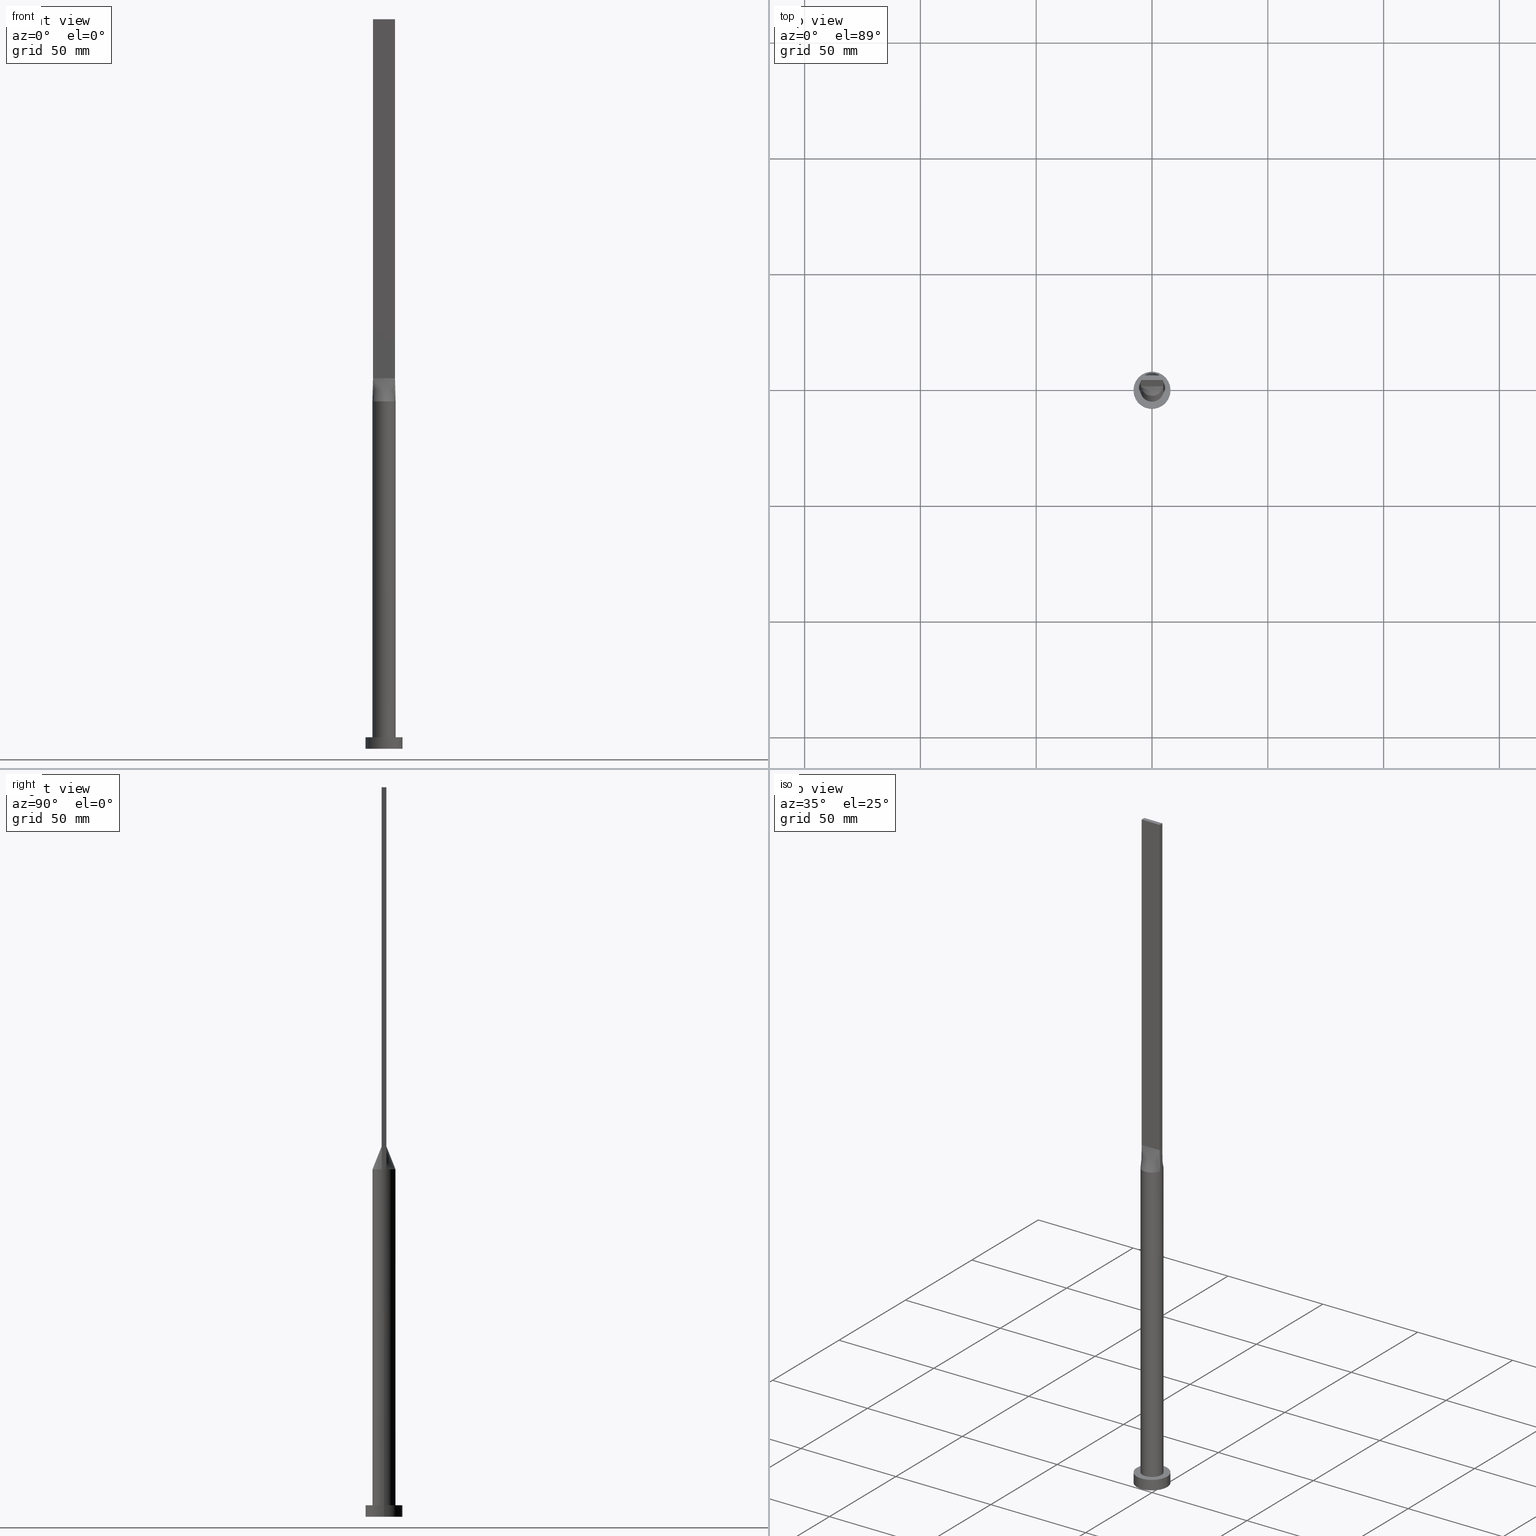
[diagram: canonical four-view strip — front | top / right | iso, engineering-drawing reading convention]
A machine part, canonical four-view strip (front | top / right | iso — engineering-drawing reading convention). The complete STEP part file that produces these views, byte-faithful:
ISO-10303-21;
HEADER;
FILE_DESCRIPTION (( 'STEP AP203' ),
    '1' );
FILE_NAME ('bf9e.STEP',
    '2023-02-13T08:35:05',
    ( '' ),
    ( '' ),
    'SwSTEP 2.0',
    'SolidWorks 2019',
    '' );
FILE_SCHEMA (( 'CONFIG_CONTROL_DESIGN' ));
ENDSEC;

DATA;
#1 = DIRECTION ( 'NONE',  ( 1.000000000000000000, 0.000000000000000000, -0.000000000000000000 ) ) ;
#2 =( NAMED_UNIT ( * ) PLANE_ANGLE_UNIT ( ) SI_UNIT ( $, .RADIAN. ) );
#3 = ORIENTED_EDGE ( 'NONE', *, *, #496, .F. ) ;
#4 = VECTOR ( 'NONE', #522, 1000.000000000000000 ) ;
#5 = VERTEX_POINT ( 'NONE', #431 ) ;
#6 = DIRECTION ( 'NONE',  ( 0.000000000000000000, 0.000000000000000000, 1.000000000000000000 ) ) ;
#7 = CC_DESIGN_PERSON_AND_ORGANIZATION_ASSIGNMENT ( #549, #445, ( #187 ) ) ;
#8 = CARTESIAN_POINT ( 'NONE',  ( -2.546422404201597711, 4.351724242187074765, 150.0000000000000284 ) ) ;
#9 = ADVANCED_BREP_SHAPE_REPRESENTATION ( 'bf9e', ( #507, #237 ), #285 ) ;
#10 = CIRCLE ( 'NONE', #54, 5.000000000000000000 ) ;
#11 = CARTESIAN_POINT ( 'NONE',  ( 4.667610010780610885, 1.859271532507960289, 150.0000000000000284 ) ) ;
#12 = CARTESIAN_POINT ( 'NONE',  ( -4.750000000000000000, 1.000000000000000000, 315.0000000000000000 ) ) ;
#13 = EDGE_CURVE ( 'NONE', #316, #479, #532, .T. ) ;
#14 = DIRECTION ( 'NONE',  ( 1.000000000000000000, 0.000000000000000000, 0.000000000000000000 ) ) ;
#15 = CARTESIAN_POINT ( 'NONE',  ( -1.331739278681919991, 4.830988864699813590, 149.9999999999999432 ) ) ;
#16 = DIRECTION ( 'NONE',  ( 1.000000000000000000, 0.000000000000000000, 0.000000000000000000 ) ) ;
#17 = CARTESIAN_POINT ( 'NONE',  ( -0.3380808736611334853, -5.000000000000000000, 150.0000000000000284 ) ) ;
#18 = AXIS2_PLACEMENT_3D ( 'NONE', #530, #567, #582 ) ;
#19 = CARTESIAN_POINT ( 'NONE',  ( 4.750000000000000000, -0.9999999999999997780, 315.0000000000000000 ) ) ;
#20 = CARTESIAN_POINT ( 'NONE',  ( -0.7916666666666588581, -0.9999999999999991118, 159.9999999999999716 ) ) ;
#21 = CARTESIAN_POINT ( 'NONE',  ( 4.750000000000000000, 1.000000000000000000, 160.0000000000000000 ) ) ;
#22 = EDGE_CURVE ( 'NONE', #79, #142, #74, .T. ) ;
#23 = CARTESIAN_POINT ( 'NONE',  ( 0.3380808736611294329, -5.000000000000000000, 149.9999999999999432 ) ) ;
#24 = CARTESIAN_POINT ( 'NONE',  ( -4.750000000000000000, -0.9999999999999991118, 160.0000000000000000 ) ) ;
#25 = CARTESIAN_POINT ( 'NONE',  ( -1.583333333333325932, -0.9999999999999991118, 159.9999999999999716 ) ) ;
#26 = CARTESIAN_POINT ( 'NONE',  ( 4.214142381859630859, 2.735777372109855943, 150.0000000000000568 ) ) ;
#27 = CARTESIAN_POINT ( 'NONE',  ( 0.000000000000000000, 0.000000000000000000, 0.000000000000000000 ) ) ;
#28 = AXIS2_PLACEMENT_3D ( 'NONE', #200, #63, #14 ) ;
#29 = CARTESIAN_POINT ( 'NONE',  ( -3.166666666666662078, -0.9999999999999991118, 159.9999999999999716 ) ) ;
#30 = CARTESIAN_POINT ( 'NONE',  ( 4.892748924933745691, 1.030052405249209269, 150.0000000000000000 ) ) ;
#31 = APPROVAL ( #312, 'NEUR�EN�' ) ;
#32 = ORIENTED_EDGE ( 'NONE', *, *, #369, .T. ) ;
#33 = AXIS2_PLACEMENT_3D ( 'NONE', #380, #391, #579 ) ;
#34 = LOCAL_TIME ( 9, 35, 5.000000000000000000, #245 ) ;
#35 = FACE_OUTER_BOUND ( 'NONE', #297, .T. ) ;
#36 = CIRCLE ( 'NONE', #279, 8.000000000000000000 ) ;
#37 = DATE_AND_TIME ( #89, #194 ) ;
#38 = APPLICATION_PROTOCOL_DEFINITION ( 'international standard', 'config_control_design', 1994, #246 ) ;
#39 = FACE_OUTER_BOUND ( 'NONE', #556, .T. ) ;
#40 = COORDINATED_UNIVERSAL_TIME_OFFSET ( 1, 0, .AHEAD. ) ;
#41 = CARTESIAN_POINT ( 'NONE',  ( 0.3958333333333319271, 1.000000000000000000, 159.9999999999999716 ) ) ;
#42 = ORIENTED_EDGE ( 'NONE', *, *, #119, .T. ) ;
#43 = DIRECTION ( 'NONE',  ( 0.000000000000000000, 0.000000000000000000, 1.000000000000000000 ) ) ;
#44 = AXIS2_PLACEMENT_3D ( 'NONE', #338, #577, #117 ) ;
#45 = CARTESIAN_POINT ( 'NONE',  ( -4.750000000000000000, 1.000000000000000000, 315.0000000000000000 ) ) ;
#46 = ORIENTED_EDGE ( 'NONE', *, *, #277, .F. ) ;
#47 = DIRECTION ( 'NONE',  ( -1.000000000000000000, 0.000000000000000000, 0.000000000000000000 ) ) ;
#48 = PERSON_AND_ORGANIZATION ( #378, #259 ) ;
#49 = ORIENTED_EDGE ( 'NONE', *, *, #411, .T. ) ;
#50 = CARTESIAN_POINT ( 'NONE',  ( -8.000000000000000000, 0.000000000000000000, 5.000000000000000000 ) ) ;
#51 = AXIS2_PLACEMENT_3D ( 'NONE', #120, #254, #384 ) ;
#52 = ADVANCED_FACE ( 'NONE', ( #470 ), #108, .T. ) ;
#53 = B_SPLINE_SURFACE_WITH_KNOTS ( 'NONE', 3, 1, ( 
 ( #157, #299 ),
 ( #387, #481 ),
 ( #68, #163 ),
 ( #534, #258 ),
 ( #429, #304 ),
 ( #75, #21 ) ),
 .UNSPECIFIED., .F., .F., .F.,
 ( 4, 2, 4 ),
 ( 2, 2 ),
 ( 0.000000000000000000, 0.5000000000000000000, 1.000000000000000000 ),
 ( 0.000000000000000000, 1.000000000000000000 ),
 .UNSPECIFIED. ) ;
#54 = AXIS2_PLACEMENT_3D ( 'NONE', #58, #248, #56 ) ;
#55 = CC_DESIGN_SECURITY_CLASSIFICATION ( #187, ( #402 ) ) ;
#56 = DIRECTION ( 'NONE',  ( 1.000000000000000000, 0.000000000000000000, 0.000000000000000000 ) ) ;
#57 = CARTESIAN_POINT ( 'NONE',  ( -4.750000000000000000, 1.000000000000000000, 315.0000000000000000 ) ) ;
#58 = CARTESIAN_POINT ( 'NONE',  ( 0.000000000000000000, 0.000000000000000000, 150.0000000000000000 ) ) ;
#59 = EDGE_LOOP ( 'NONE', ( #355, #46, #140, #94 ) ) ;
#60 = ADVANCED_FACE ( 'NONE', ( #39 ), #528, .T. ) ;
#61 = VERTEX_POINT ( 'NONE', #347 ) ;
#62 = CARTESIAN_POINT ( 'NONE',  ( 5.000000000000000000, 6.123233995736766282E-16, 150.0000000000000000 ) ) ;
#63 = DIRECTION ( 'NONE',  ( 0.000000000000000000, 0.000000000000000000, 1.000000000000000000 ) ) ;
#64 = CARTESIAN_POINT ( 'NONE',  ( 4.750000000000000000, 1.000000000000000000, 315.0000000000000000 ) ) ;
#65 = PLANE ( 'NONE',  #468 ) ;
#66 = CARTESIAN_POINT ( 'NONE',  ( -0.9895833333333253767, -0.9999999999999991118, 159.9999999999999716 ) ) ;
#67 = EDGE_CURVE ( 'NONE', #505, #310, #311, .T. ) ;
#68 = CARTESIAN_POINT ( 'NONE',  ( 5.000000000000000888, -0.3470731991230004421, 150.0000000000000284 ) ) ;
#69 = CARTESIAN_POINT ( 'NONE',  ( 2.770833333333338366, -0.9999999999999995559, 159.9999999999999716 ) ) ;
#70 = EDGE_LOOP ( 'NONE', ( #249, #240, #282, #83, #266, #459 ) ) ;
#71 = LOCAL_TIME ( 9, 35, 5.000000000000000000, #538 ) ;
#72 = FACE_OUTER_BOUND ( 'NONE', #59, .T. ) ;
#73 = CARTESIAN_POINT ( 'NONE',  ( -3.067114325249250317, -3.991228734590923199, 149.9999999999999432 ) ) ;
#74 = LINE ( 'NONE', #12, #4 ) ;
#75 = CARTESIAN_POINT ( 'NONE',  ( 4.892748924933744803, 1.030052405249211045, 150.0000000000000000 ) ) ;
#76 = EDGE_CURVE ( 'NONE', #128, #516, #344, .T. ) ;
#77 = CARTESIAN_POINT ( 'NONE',  ( -4.808752461626938590, -1.429035605956546329, 150.0000000000000000 ) ) ;
#78 = CARTESIAN_POINT ( 'NONE',  ( 4.750000000000000000, 1.000000000000000000, 160.0000000000000000 ) ) ;
#79 = VERTEX_POINT ( 'NONE', #340 ) ;
#80 = VERTEX_POINT ( 'NONE', #571 ) ;
#81 = PERSON_AND_ORGANIZATION ( #378, #259 ) ;
#82 = CARTESIAN_POINT ( 'NONE',  ( -4.750000000000000000, 1.000000000000000000, 160.0000000000000000 ) ) ;
#83 = ORIENTED_EDGE ( 'NONE', *, *, #112, .F. ) ;
#84 = CARTESIAN_POINT ( 'NONE',  ( -4.821374462466872401, -1.015026202624603524, 155.0000000000000000 ) ) ;
#85 = CARTESIAN_POINT ( 'NONE',  ( 4.808752461626937702, -1.429035605956550103, 149.9999999999999716 ) ) ;
#86 = ORIENTED_EDGE ( 'NONE', *, *, #112, .T. ) ;
#87 = CARTESIAN_POINT ( 'NONE',  ( 4.808752461626938590, 1.429035605956548549, 150.0000000000000000 ) ) ;
#88 = EDGE_CURVE ( 'NONE', #406, #98, #514, .T. ) ;
#89 = CALENDAR_DATE ( 2023, 13, 2 ) ;
#90 = LINE ( 'NONE', #331, #138 ) ;
#91 = VECTOR ( 'NONE', #515, 1000.000000000000000 ) ;
#92 = VECTOR ( 'NONE', #404, 1000.000000000000227 ) ;
#93 = MECHANICAL_CONTEXT ( 'NONE', #570, 'mechanical' ) ;
#94 = ORIENTED_EDGE ( 'NONE', *, *, #374, .T. ) ;
#95 = B_SPLINE_SURFACE_WITH_KNOTS ( 'NONE', 3, 1, ( 
 ( #264, #434 ),
 ( #77, #298 ),
 ( #303, #437 ),
 ( #388, #29 ),
 ( #486, #212 ),
 ( #73, #296 ),
 ( #478, #25 ),
 ( #583, #66 ),
 ( #262, #20 ),
 ( #383, #210 ),
 ( #17, #341 ),
 ( #23, #345 ),
 ( #121, #475 ),
 ( #255, #422 ),
 ( #115, #260 ),
 ( #201, #203 ),
 ( #158, #300 ),
 ( #482, #69 ),
 ( #430, #206 ),
 ( #385, #230 ),
 ( #85, #448 ),
 ( #321, #220 ) ),
 .UNSPECIFIED., .F., .F., .F.,
 ( 4, 2, 2, 2, 2, 2, 2, 2, 2, 2, 4 ),
 ( 2, 2 ),
 ( 0.000000000000000000, 0.1250000000000000278, 0.2500000000000000555, 0.3750000000000001110, 0.4375000000000000555, 0.5000000000000000000, 0.5625000000000000000, 0.6250000000000000000, 0.7500000000000000000, 0.8750000000000001110, 1.000000000000000000 ),
 ( 0.000000000000000000, 1.000000000000000000 ),
 .UNSPECIFIED. ) ;
#96 = EDGE_CURVE ( 'NONE', #142, #80, #420, .T. ) ;
#97 = ORIENTED_EDGE ( 'NONE', *, *, #96, .T. ) ;
#98 = VERTEX_POINT ( 'NONE', #337 ) ;
#99 = DIRECTION ( 'NONE',  ( -1.000000000000000000, 0.000000000000000000, 0.000000000000000000 ) ) ;
#100 = DIRECTION ( 'NONE',  ( 1.000000000000000000, 0.000000000000000000, 0.000000000000000000 ) ) ;
#101 = ORIENTED_EDGE ( 'NONE', *, *, #13, .T. ) ;
#102 = CARTESIAN_POINT ( 'NONE',  ( -4.808752461626937702, 1.429035605956548771, 150.0000000000000000 ) ) ;
#103 = ORIENTED_EDGE ( 'NONE', *, *, #76, .F. ) ;
#104 = DIRECTION ( 'NONE',  ( -0.000000000000000000, -0.000000000000000000, -1.000000000000000000 ) ) ;
#105 = DATE_AND_TIME ( #370, #34 ) ;
#106 = CARTESIAN_POINT ( 'NONE',  ( 3.067114325249248097, 3.991228734590925864, 150.0000000000000568 ) ) ;
#107 = DIRECTION ( 'NONE',  ( 0.000000000000000000, 0.000000000000000000, 1.000000000000000000 ) ) ;
#108 = B_SPLINE_SURFACE_WITH_KNOTS ( 'NONE', 3, 1, ( 
 ( #30, #78 ),
 ( #263, #446 ),
 ( #274, #399 ),
 ( #26, #179 ),
 ( #221, #265 ),
 ( #442, #584 ),
 ( #168, #211 ),
 ( #595, #315 ),
 ( #392, #500 ),
 ( #170, #41 ),
 ( #213, #122 ),
 ( #132, #226 ),
 ( #539, #600 ),
 ( #309, #176 ),
 ( #361, #357 ),
 ( #395, #319 ),
 ( #503, #588 ),
 ( #165, #349 ),
 ( #438, #550 ),
 ( #492, #440 ),
 ( #544, #435 ),
 ( #127, #82 ) ),
 .UNSPECIFIED., .F., .F., .F.,
 ( 4, 2, 2, 2, 2, 2, 2, 2, 2, 2, 4 ),
 ( 2, 2 ),
 ( 0.000000000000000000, 0.1250000000000000278, 0.2500000000000000000, 0.3749999999999999445, 0.4375000000000000000, 0.5000000000000000000, 0.5625000000000000000, 0.6250000000000000000, 0.7500000000000000000, 0.8750000000000001110, 1.000000000000000000 ),
 ( 0.000000000000000000, 1.000000000000000000 ),
 .UNSPECIFIED. ) ;
#109 = FACE_OUTER_BOUND ( 'NONE', #342, .T. ) ;
#110 = DIRECTION ( 'NONE',  ( -1.000000000000000000, 0.000000000000000000, 0.000000000000000000 ) ) ;
#111 = LINE ( 'NONE', #488, #336 ) ;
#112 = EDGE_CURVE ( 'NONE', #180, #545, #504, .T. ) ;
#113 = ORIENTED_EDGE ( 'NONE', *, *, #443, .F. ) ;
#114 = DIRECTION ( 'NONE',  ( 6.847592668329501559E-17, 1.000000000000000000, -0.000000000000000000 ) ) ;
#115 = CARTESIAN_POINT ( 'NONE',  ( 1.649264041307592965, -4.731318088779740805, 150.0000000000000284 ) ) ;
#116 = DIRECTION ( 'NONE',  ( 1.000000000000000000, -6.847592668329501559E-17, 0.000000000000000000 ) ) ;
#117 = DIRECTION ( 'NONE',  ( 1.000000000000000000, 0.000000000000000000, -0.000000000000000000 ) ) ;
#118 = CC_DESIGN_APPROVAL ( #307, ( #402 ) ) ;
#119 = EDGE_CURVE ( 'NONE', #501, #332, #302, .T. ) ;
#120 = CARTESIAN_POINT ( 'NONE',  ( 0.000000000000000000, 0.000000000000000000, 150.0000000000000000 ) ) ;
#121 = CARTESIAN_POINT ( 'NONE',  ( 0.6760916456145764641, -4.965368365385190330, 150.0000000000000000 ) ) ;
#122 = CARTESIAN_POINT ( 'NONE',  ( 0.1979166666666652141, 1.000000000000000000, 159.9999999999999716 ) ) ;
#123 = DIRECTION ( 'NONE',  ( -0.000000000000000000, -0.000000000000000000, -1.000000000000000000 ) ) ;
#124 = CALENDAR_DATE ( 2023, 13, 2 ) ;
#125 = DIRECTION ( 'NONE',  ( 1.000000000000000000, 0.000000000000000000, -0.000000000000000000 ) ) ;
#126 = AXIS2_PLACEMENT_3D ( 'NONE', #526, #202, #110 ) ;
#127 = CARTESIAN_POINT ( 'NONE',  ( -4.892748924933745691, 1.030052405249209269, 150.0000000000000000 ) ) ;
#128 = VERTEX_POINT ( 'NONE', #379 ) ;
#129 = ADVANCED_FACE ( 'NONE', ( #72 ), #65, .F. ) ;
#130 = CARTESIAN_POINT ( 'NONE',  ( -4.963482788771056420, 0.6940665520219767570, 150.0000000000000284 ) ) ;
#131 = DATE_AND_TIME ( #599, #533 ) ;
#132 = CARTESIAN_POINT ( 'NONE',  ( -0.3380808736611314869, 4.999999999999999112, 150.0000000000000568 ) ) ;
#133 = VERTEX_POINT ( 'NONE', #432 ) ;
#134 = CARTESIAN_POINT ( 'NONE',  ( -1.649264041307594963, 4.731318088779739917, 149.9999999999999716 ) ) ;
#135 = DIRECTION ( 'NONE',  ( -0.000000000000000000, 0.000000000000000000, -1.000000000000000000 ) ) ;
#136 = DIRECTION ( 'NONE',  ( 1.000000000000000000, 0.000000000000000000, 0.000000000000000000 ) ) ;
#137 = ORIENTED_EDGE ( 'NONE', *, *, #542, .T. ) ;
#138 = VECTOR ( 'NONE', #412, 1000.000000000000000 ) ;
#139 = PRODUCT_DEFINITION ( 'NEZN�M�', '', #402, #581 ) ;
#140 = ORIENTED_EDGE ( 'NONE', *, *, #96, .F. ) ;
#141 = APPROVAL_ROLE ( '' ) ;
#142 = VERTEX_POINT ( 'NONE', #209 ) ;
#143 = CARTESIAN_POINT ( 'NONE',  ( 0.000000000000000000, 0.000000000000000000, 150.0000000000000000 ) ) ;
#144 = CARTESIAN_POINT ( 'NONE',  ( 4.214142381859630859, 2.735777372109855943, 150.0000000000000568 ) ) ;
#145 = ORIENTED_EDGE ( 'NONE', *, *, #443, .T. ) ;
#146 = APPROVAL_PERSON_ORGANIZATION ( #318, #480, #141 ) ;
#147 = DIRECTION ( 'NONE',  ( -0.000000000000000000, -0.000000000000000000, -1.000000000000000000 ) ) ;
#148 = DIRECTION ( 'NONE',  ( 0.000000000000000000, -1.000000000000000000, 0.000000000000000000 ) ) ;
#149 = FACE_OUTER_BOUND ( 'NONE', #217, .T. ) ;
#150 = PLANE ( 'NONE',  #346 ) ;
#151 = ORIENTED_EDGE ( 'NONE', *, *, #451, .F. ) ;
#152 = CARTESIAN_POINT ( 'NONE',  ( -4.750000000000000000, -0.9999999999999991118, 315.0000000000000000 ) ) ;
#153 = EDGE_CURVE ( 'NONE', #80, #396, #256, .T. ) ;
#154 = AXIS2_PLACEMENT_3D ( 'NONE', #45, #125, #135 ) ;
#155 = DIRECTION ( 'NONE',  ( 1.000000000000000000, 0.000000000000000000, 0.000000000000000000 ) ) ;
#156 = ORIENTED_EDGE ( 'NONE', *, *, #496, .T. ) ;
#157 = CARTESIAN_POINT ( 'NONE',  ( 4.892748924933744803, -1.030052405249212155, 150.0000000000000000 ) ) ;
#158 = CARTESIAN_POINT ( 'NONE',  ( 3.067114325249245876, -3.991228734590925864, 150.0000000000000000 ) ) ;
#159 = DIRECTION ( 'NONE',  ( -0.000000000000000000, -0.000000000000000000, -1.000000000000000000 ) ) ;
#160 = DIRECTION ( 'NONE',  ( 0.000000000000000000, 0.000000000000000000, 1.000000000000000000 ) ) ;
#161 = EDGE_CURVE ( 'NONE', #501, #169, #555, .T. ) ;
#162 = VECTOR ( 'NONE', #421, 1000.000000000000000 ) ;
#163 = CARTESIAN_POINT ( 'NONE',  ( 4.750000000000000000, -0.3333333333333315940, 159.9999999999999716 ) ) ;
#164 = FACE_OUTER_BOUND ( 'NONE', #186, .T. ) ;
#165 = CARTESIAN_POINT ( 'NONE',  ( -3.900093280396789819, 3.182195704254724422, 150.0000000000000000 ) ) ;
#166 = ORIENTED_EDGE ( 'NONE', *, *, #153, .T. ) ;
#167 = CARTESIAN_POINT ( 'NONE',  ( 4.750000000000000000, -0.9999999999999997780, 315.0000000000000000 ) ) ;
#168 = CARTESIAN_POINT ( 'NONE',  ( 2.546422404201596823, 4.351724242187075653, 150.0000000000000000 ) ) ;
#169 = VERTEX_POINT ( 'NONE', #381 ) ;
#170 = CARTESIAN_POINT ( 'NONE',  ( 0.6760916456145784625, 4.965368365385191218, 150.0000000000000000 ) ) ;
#171 = EDGE_LOOP ( 'NONE', ( #497, #575 ) ) ;
#172 = CARTESIAN_POINT ( 'NONE',  ( 0.000000000000000000, 0.000000000000000000, 5.000000000000000000 ) ) ;
#173 = VECTOR ( 'NONE', #425, 1000.000000000000000 ) ;
#174 = ADVANCED_FACE ( 'NONE', ( #576 ), #53, .T. ) ;
#175 = PERSON_AND_ORGANIZATION_ROLE ( 'design_supplier' ) ;
#176 = CARTESIAN_POINT ( 'NONE',  ( -0.7916666666666679619, 1.000000000000000000, 159.9999999999999716 ) ) ;
#177 = LINE ( 'NONE', #167, #494 ) ;
#178 = DATE_TIME_ROLE ( 'classification_date' ) ;
#179 = CARTESIAN_POINT ( 'NONE',  ( 3.166666666666665630, 1.000000000000000000, 159.9999999999999716 ) ) ;
#180 = VERTEX_POINT ( 'NONE', #376 ) ;
#181 = CARTESIAN_POINT ( 'NONE',  ( -4.750000000000000000, -0.9999999999999991118, 315.0000000000000000 ) ) ;
#182 = DIRECTION ( 'NONE',  ( 0.000000000000000000, 0.000000000000000000, 1.000000000000000000 ) ) ;
#183 = ORIENTED_EDGE ( 'NONE', *, *, #463, .F. ) ;
#184 = ADVANCED_FACE ( 'NONE', ( #149 ), #205, .T. ) ;
#185 = CIRCLE ( 'NONE', #293, 5.000000000000000000 ) ;
#186 = EDGE_LOOP ( 'NONE', ( #156, #489, #97, #166 ) ) ;
#187 = SECURITY_CLASSIFICATION ( '', '', #273 ) ;
#188 = ORIENTED_EDGE ( 'NONE', *, *, #22, .F. ) ;
#189 = FACE_OUTER_BOUND ( 'NONE', #70, .T. ) ;
#190 = CARTESIAN_POINT ( 'NONE',  ( 4.750000000000000000, 1.000000000000000000, 160.0000000000000000 ) ) ;
#191 = ADVANCED_FACE ( 'NONE', ( #523 ), #562, .T. ) ;
#192 = VECTOR ( 'NONE', #386, 1000.000000000000227 ) ;
#193 = CARTESIAN_POINT ( 'NONE',  ( -3.900093280396789819, 3.182195704254724422, 150.0000000000000000 ) ) ;
#194 = LOCAL_TIME ( 9, 35, 5.000000000000000000, #398 ) ;
#195 = AXIS2_PLACEMENT_3D ( 'NONE', #578, #159, #334 ) ;
#196 = CARTESIAN_POINT ( 'NONE',  ( -3.067114325249248097, 3.991228734590924976, 150.0000000000000284 ) ) ;
#197 = CARTESIAN_POINT ( 'NONE',  ( 0.000000000000000000, 0.000000000000000000, 150.0000000000000000 ) ) ;
#198 = DIRECTION ( 'NONE',  ( -0.000000000000000000, 1.000000000000000000, -0.000000000000000000 ) ) ;
#199 = EDGE_CURVE ( 'NONE', #98, #406, #185, .T. ) ;
#200 = CARTESIAN_POINT ( 'NONE',  ( 0.000000000000000000, 0.000000000000000000, 5.000000000000000000 ) ) ;
#201 = CARTESIAN_POINT ( 'NONE',  ( 2.546422404201595491, -4.351724242187078318, 150.0000000000000000 ) ) ;
#202 = DIRECTION ( 'NONE',  ( -0.000000000000000000, -0.000000000000000000, -1.000000000000000000 ) ) ;
#203 = CARTESIAN_POINT ( 'NONE',  ( 1.583333333333339255, -0.9999999999999995559, 159.9999999999999716 ) ) ;
#204 = ORIENTED_EDGE ( 'NONE', *, *, #553, .T. ) ;
#205 = CYLINDRICAL_SURFACE ( 'NONE', #195, 5.000000000000000000 ) ;
#206 = CARTESIAN_POINT ( 'NONE',  ( 3.166666666666671404, -0.9999999999999995559, 159.9999999999999716 ) ) ;
#207 = CARTESIAN_POINT ( 'NONE',  ( 4.821374462466871513, 1.015026202624605522, 155.0000000000000000 ) ) ;
#208 = UNCERTAINTY_MEASURE_WITH_UNIT (LENGTH_MEASURE( 1.000000000000000082E-05 ), #405, 'distance_accuracy_value', 'NONE');
#209 = CARTESIAN_POINT ( 'NONE',  ( -4.750000000000000000, -0.9999999999999991118, 315.0000000000000000 ) ) ;
#210 = CARTESIAN_POINT ( 'NONE',  ( -0.3958333333333258208, -0.9999999999999991118, 159.9999999999999716 ) ) ;
#211 = CARTESIAN_POINT ( 'NONE',  ( 1.583333333333332593, 1.000000000000000000, 159.9999999999999716 ) ) ;
#212 = CARTESIAN_POINT ( 'NONE',  ( -2.770833333333328152, -0.9999999999999991118, 159.9999999999999716 ) ) ;
#213 = CARTESIAN_POINT ( 'NONE',  ( 0.3380808736611315979, 4.999999999999999112, 150.0000000000000000 ) ) ;
#214 = ORIENTED_EDGE ( 'NONE', *, *, #199, .F. ) ;
#215 = AXIS2_PLACEMENT_3D ( 'NONE', #143, #327, #99 ) ;
#216 = PERSON_AND_ORGANIZATION_ROLE ( 'creator' ) ;
#217 = EDGE_LOOP ( 'NONE', ( #183, #561, #452, #569, #536, #362 ) ) ;
#218 = ADVANCED_FACE ( 'NONE', ( #591, #35 ), #554, .T. ) ;
#219 = DIRECTION ( 'NONE',  ( 1.000000000000000000, 0.000000000000000000, 0.000000000000000000 ) ) ;
#220 = CARTESIAN_POINT ( 'NONE',  ( 4.750000000000000000, -0.9999999999999997780, 160.0000000000000000 ) ) ;
#221 = CARTESIAN_POINT ( 'NONE',  ( 3.900093280396791151, 3.182195704254724422, 150.0000000000000284 ) ) ;
#222 = ORIENTED_EDGE ( 'NONE', *, *, #343, .T. ) ;
#223 = CLOSED_SHELL ( 'NONE', ( #184, #508, #60, #218, #484, #333, #580, #174, #191, #52, #517, #242, #129, #301, #559 ) ) ;
#224 = CARTESIAN_POINT ( 'NONE',  ( -5.000000000000002665, 0.3470731991229993874, 150.0000000000000284 ) ) ;
#225 = PERSON_AND_ORGANIZATION_ROLE ( 'creator' ) ;
#226 = CARTESIAN_POINT ( 'NONE',  ( -0.1979166666666680452, 1.000000000000000000, 159.9999999999999716 ) ) ;
#227 = ORIENTED_EDGE ( 'NONE', *, *, #119, .F. ) ;
#228 = CARTESIAN_POINT ( 'NONE',  ( 4.892748924933744803, 1.030052405249211045, 150.0000000000000000 ) ) ;
#229 = LINE ( 'NONE', #444, #92 ) ;
#230 = CARTESIAN_POINT ( 'NONE',  ( 3.958333333333336146, -0.9999999999999995559, 159.9999999999999716 ) ) ;
#231 = EDGE_CURVE ( 'NONE', #61, #5, #436, .T. ) ;
#232 = ORIENTED_EDGE ( 'NONE', *, *, #451, .T. ) ;
#233 = APPROVAL_ROLE ( '' ) ;
#234 = ORIENTED_EDGE ( 'NONE', *, *, #411, .F. ) ;
#235 = CARTESIAN_POINT ( 'NONE',  ( 8.000000000000000000, 9.797174393178825657E-16, 0.000000000000000000 ) ) ;
#236 = AXIS2_PLACEMENT_3D ( 'NONE', #416, #43, #252 ) ;
#237 = AXIS2_PLACEMENT_3D ( 'NONE', #365, #491, #136 ) ;
#238 = APPROVAL_DATE_TIME ( #105, #480 ) ;
#239 = CARTESIAN_POINT ( 'NONE',  ( 0.000000000000000000, 0.000000000000000000, 0.000000000000000000 ) ) ;
#240 = ORIENTED_EDGE ( 'NONE', *, *, #67, .F. ) ;
#241 = DIRECTION ( 'NONE',  ( -0.000000000000000000, -0.000000000000000000, -1.000000000000000000 ) ) ;
#242 = ADVANCED_FACE ( 'NONE', ( #593 ), #598, .F. ) ;
#243 = CARTESIAN_POINT ( 'NONE',  ( 4.892747712986307285, -1.030052143680505683, 150.0000000000000000 ) ) ;
#244 = EDGE_LOOP ( 'NONE', ( #339, #540, #281, #454 ) ) ;
#245 = COORDINATED_UNIVERSAL_TIME_OFFSET ( 1, 0, .AHEAD. ) ;
#246 = APPLICATION_CONTEXT ( 'configuration controlled 3d designs of mechanical parts and assemblies' ) ;
#247 = AXIS2_PLACEMENT_3D ( 'NONE', #197, #107, #16 ) ;
#248 = DIRECTION ( 'NONE',  ( 0.000000000000000000, 0.000000000000000000, 1.000000000000000000 ) ) ;
#249 = ORIENTED_EDGE ( 'NONE', *, *, #352, .F. ) ;
#250 = DIRECTION ( 'NONE',  ( -0.000000000000000000, -0.000000000000000000, -1.000000000000000000 ) ) ;
#251 = VECTOR ( 'NONE', #272, 1000.000000000000227 ) ;
#252 = DIRECTION ( 'NONE',  ( 1.000000000000000000, 0.000000000000000000, 0.000000000000000000 ) ) ;
#253 = EDGE_CURVE ( 'NONE', #332, #133, #350, .T. ) ;
#254 = DIRECTION ( 'NONE',  ( 0.000000000000000000, 0.000000000000000000, 1.000000000000000000 ) ) ;
#255 = CARTESIAN_POINT ( 'NONE',  ( 1.331739278681917771, -4.830988864699812702, 149.9999999999999716 ) ) ;
#256 = LINE ( 'NONE', #19, #173 ) ;
#257 = DIRECTION ( 'NONE',  ( 0.000000000000000000, -1.000000000000000000, 0.000000000000000000 ) ) ;
#258 = CARTESIAN_POINT ( 'NONE',  ( 4.750000000000000000, 0.3333333333333350357, 159.9999999999999716 ) ) ;
#259 = ORGANIZATION ( 'NEUR�EN�', 'NEUR�EN�', '' ) ;
#260 = CARTESIAN_POINT ( 'NONE',  ( 0.9895833333333399207, -0.9999999999999995559, 159.9999999999999716 ) ) ;
#261 = DIRECTION ( 'NONE',  ( -1.000000000000000000, 6.847592668329501559E-17, 0.000000000000000000 ) ) ;
#262 = CARTESIAN_POINT ( 'NONE',  ( -1.331739278681922656, -4.830988864699811813, 150.0000000000000284 ) ) ;
#263 = CARTESIAN_POINT ( 'NONE',  ( 4.808752461626938590, 1.429035605956548549, 150.0000000000000000 ) ) ;
#264 = CARTESIAN_POINT ( 'NONE',  ( -4.892748924933745691, -1.030052405249207936, 150.0000000000000000 ) ) ;
#265 = CARTESIAN_POINT ( 'NONE',  ( 2.770833333333332593, 1.000000000000000000, 159.9999999999999716 ) ) ;
#266 = ORIENTED_EDGE ( 'NONE', *, *, #566, .T. ) ;
#267 = CARTESIAN_POINT ( 'NONE',  ( -5.000000000000000000, -0.3470731991229979996, 150.0000000000000568 ) ) ;
#268 = CC_DESIGN_PERSON_AND_ORGANIZATION_ASSIGNMENT ( #270, #175, ( #402 ) ) ;
#269 = ORIENTED_EDGE ( 'NONE', *, *, #400, .T. ) ;
#270 = PERSON_AND_ORGANIZATION ( #378, #259 ) ;
#271 = EDGE_LOOP ( 'NONE', ( #232, #596, #329, #366 ) ) ;
#272 = DIRECTION ( 'NONE',  ( -0.01427337385845011720, -0.003004920812305203470, -0.9998936149659165551 ) ) ;
#273 = SECURITY_CLASSIFICATION_LEVEL ( 'unclassified' ) ;
#274 = CARTESIAN_POINT ( 'NONE',  ( 4.667610010780610885, 1.859271532507960289, 150.0000000000000284 ) ) ;
#275 = CARTESIAN_POINT ( 'NONE',  ( 4.750000000000000000, 1.000000000000000000, 315.0000000000000000 ) ) ;
#276 = CARTESIAN_POINT ( 'NONE',  ( -4.750000000000000000, 0.6666666666666667407, 159.9999999999999716 ) ) ;
#277 = EDGE_CURVE ( 'NONE', #80, #516, #177, .T. ) ;
#278 =( NAMED_UNIT ( * ) SI_UNIT ( $, .STERADIAN. ) SOLID_ANGLE_UNIT ( ) );
#279 = AXIS2_PLACEMENT_3D ( 'NONE', #403, #458, #100 ) ;
#280 = FACE_OUTER_BOUND ( 'NONE', #271, .T. ) ;
#281 = ORIENTED_EDGE ( 'NONE', *, *, #389, .F. ) ;
#282 = ORIENTED_EDGE ( 'NONE', *, *, #542, .F. ) ;
#283 = CARTESIAN_POINT ( 'NONE',  ( -4.214142381859630859, 2.735777372109856387, 150.0000000000000000 ) ) ;
#284 = EDGE_CURVE ( 'NONE', #128, #545, #490, .T. ) ;
#285 =( GEOMETRIC_REPRESENTATION_CONTEXT ( 3 ) GLOBAL_UNCERTAINTY_ASSIGNED_CONTEXT ( ( #208 ) ) GLOBAL_UNIT_ASSIGNED_CONTEXT ( ( #405, #2, #278 ) ) REPRESENTATION_CONTEXT ( 'NONE', 'WORKASPACE' ) );
#286 = LINE ( 'NONE', #57, #557 ) ;
#287 = CARTESIAN_POINT ( 'NONE',  ( 8.000000000000000000, 9.797174393178825657E-16, 5.000000000000000000 ) ) ;
#288 = ORIENTED_EDGE ( 'NONE', *, *, #88, .F. ) ;
#289 = CARTESIAN_POINT ( 'NONE',  ( 2.546422404201596823, 4.351724242187075653, 150.0000000000000000 ) ) ;
#290 = LINE ( 'NONE', #181, #471 ) ;
#291 = EDGE_CURVE ( 'NONE', #505, #516, #229, .T. ) ;
#292 = CARTESIAN_POINT ( 'NONE',  ( -0.3380808736611314869, 4.999999999999999112, 150.0000000000000568 ) ) ;
#293 = AXIS2_PLACEMENT_3D ( 'NONE', #172, #182, #219 ) ;
#294 = CARTESIAN_POINT ( 'NONE',  ( -4.892748924933745691, 1.030052405249209269, 150.0000000000000000 ) ) ;
#295 = VECTOR ( 'NONE', #250, 1000.000000000000000 ) ;
#296 = CARTESIAN_POINT ( 'NONE',  ( -1.979166666666659857, -0.9999999999999991118, 159.9999999999999716 ) ) ;
#297 = EDGE_LOOP ( 'NONE', ( #145, #351 ) ) ;
#298 = CARTESIAN_POINT ( 'NONE',  ( -4.354166666666665186, -0.9999999999999991118, 160.0000000000000000 ) ) ;
#299 = CARTESIAN_POINT ( 'NONE',  ( 4.750000000000000000, -1.000000000000000000, 160.0000000000000000 ) ) ;
#300 = CARTESIAN_POINT ( 'NONE',  ( 1.979166666666672514, -0.9999999999999995559, 159.9999999999999716 ) ) ;
#301 = ADVANCED_FACE ( 'NONE', ( #280 ), #513, .F. ) ;
#302 = LINE ( 'NONE', #487, #426 ) ;
#303 = CARTESIAN_POINT ( 'NONE',  ( -4.667610010780609997, -1.859271532507959845, 150.0000000000000000 ) ) ;
#304 = CARTESIAN_POINT ( 'NONE',  ( 4.750000000000000000, 0.6666666666666678509, 159.9999999999999716 ) ) ;
#305 = PLANE ( 'NONE',  #44 ) ;
#306 = B_SPLINE_CURVE_WITH_KNOTS ( 'NONE', 3,
 ( #228, #87, #11, #144, #521, #106, #289, #465, #601, #469, #506, #292, #552, #15, #134, #8, #196, #193, #283, #320, #102, #377 ),
 .UNSPECIFIED., .F., .F.,
 ( 4, 2, 2, 2, 2, 2, 2, 2, 2, 2, 4 ),
 ( 0.000000000000000000, 0.1250000000000000278, 0.2500000000000000000, 0.3749999999999999445, 0.4375000000000000000, 0.5000000000000000000, 0.5625000000000000000, 0.6250000000000000000, 0.7500000000000000000, 0.8750000000000001110, 1.000000000000000000 ),
 .UNSPECIFIED. ) ;
#307 = APPROVAL ( #401, 'NEUR�EN�' ) ;
#308 = DATE_AND_TIME ( #124, #71 ) ;
#309 = CARTESIAN_POINT ( 'NONE',  ( -1.331739278681919991, 4.830988864699813590, 149.9999999999999432 ) ) ;
#310 = VERTEX_POINT ( 'NONE', #558 ) ;
#311 = CIRCLE ( 'NONE', #51, 5.000000000000000000 ) ;
#312 = APPROVAL_STATUS ( 'not_yet_approved' ) ;
#313 = CC_DESIGN_APPROVAL ( #480, ( #187 ) ) ;
#314 = CARTESIAN_POINT ( 'NONE',  ( -4.750000000000000000, -0.9999999999999991118, 160.0000000000000000 ) ) ;
#315 = CARTESIAN_POINT ( 'NONE',  ( 0.9895833333333323711, 1.000000000000000000, 159.9999999999999716 ) ) ;
#316 = VERTEX_POINT ( 'NONE', #408 ) ;
#317 = CARTESIAN_POINT ( 'NONE',  ( -4.750000000000000000, -0.3333333333333327042, 159.9999999999999716 ) ) ;
#318 = PERSON_AND_ORGANIZATION ( #378, #259 ) ;
#319 = CARTESIAN_POINT ( 'NONE',  ( -1.583333333333334592, 1.000000000000000000, 159.9999999999999716 ) ) ;
#320 = CARTESIAN_POINT ( 'NONE',  ( -4.667610010780610885, 1.859271532507960067, 150.0000000000000568 ) ) ;
#321 = CARTESIAN_POINT ( 'NONE',  ( 4.892748924933744803, -1.030052405249212155, 150.0000000000000000 ) ) ;
#322 = VECTOR ( 'NONE', #104, 1000.000000000000000 ) ;
#323 = ORIENTED_EDGE ( 'NONE', *, *, #284, .T. ) ;
#324 = ORIENTED_EDGE ( 'NONE', *, *, #284, .F. ) ;
#325 = EDGE_CURVE ( 'NONE', #169, #133, #453, .T. ) ;
#326 = EDGE_LOOP ( 'NONE', ( #204, #86, #324, #234, #511 ) ) ;
#327 = DIRECTION ( 'NONE',  ( -0.000000000000000000, -0.000000000000000000, -1.000000000000000000 ) ) ;
#328 = LINE ( 'NONE', #275, #91 ) ;
#329 = ORIENTED_EDGE ( 'NONE', *, *, #153, .F. ) ;
#330 = PRODUCT ( 'bf9e', 'bf9e', '', ( #93 ) ) ;
#331 = CARTESIAN_POINT ( 'NONE',  ( -4.750000000000000000, 1.000000000000000000, 160.0000000000000000 ) ) ;
#332 = VERTEX_POINT ( 'NONE', #235 ) ;
#333 = ADVANCED_FACE ( 'NONE', ( #189 ), #371, .T. ) ;
#334 = DIRECTION ( 'NONE',  ( -1.000000000000000000, 0.000000000000000000, 0.000000000000000000 ) ) ;
#335 = DIRECTION ( 'NONE',  ( 0.000000000000000000, 0.000000000000000000, 1.000000000000000000 ) ) ;
#336 = VECTOR ( 'NONE', #525, 1000.000000000000000 ) ;
#337 = CARTESIAN_POINT ( 'NONE',  ( -5.000000000000000000, 0.000000000000000000, 5.000000000000000000 ) ) ;
#338 = CARTESIAN_POINT ( 'NONE',  ( 0.000000000000000000, 0.000000000000000000, 315.0000000000000000 ) ) ;
#339 = ORIENTED_EDGE ( 'NONE', *, *, #433, .T. ) ;
#340 = CARTESIAN_POINT ( 'NONE',  ( -4.750000000000000000, 1.000000000000000000, 315.0000000000000000 ) ) ;
#341 = CARTESIAN_POINT ( 'NONE',  ( -0.1979166666666593299, -0.9999999999999993339, 159.9999999999999716 ) ) ;
#342 = EDGE_LOOP ( 'NONE', ( #137, #589, #103, #323 ) ) ;
#343 = EDGE_CURVE ( 'NONE', #79, #5, #286, .T. ) ;
#344 = LINE ( 'NONE', #24, #455 ) ;
#345 = CARTESIAN_POINT ( 'NONE',  ( 0.1979166666666737351, -0.9999999999999993339, 159.9999999999999716 ) ) ;
#346 = AXIS2_PLACEMENT_3D ( 'NONE', #239, #502, #560 ) ;
#347 = CARTESIAN_POINT ( 'NONE',  ( -4.892747712986291297, 1.030052143680498133, 150.0000000000000000 ) ) ;
#348 = DIRECTION ( 'NONE',  ( 1.000000000000000000, 0.000000000000000000, 0.000000000000000000 ) ) ;
#349 = CARTESIAN_POINT ( 'NONE',  ( -2.770833333333334814, 1.000000000000000000, 159.9999999999999716 ) ) ;
#350 = CIRCLE ( 'NONE', #473, 8.000000000000000000 ) ;
#351 = ORIENTED_EDGE ( 'NONE', *, *, #161, .T. ) ;
#352 = EDGE_CURVE ( 'NONE', #310, #406, #413, .T. ) ;
#353 = CARTESIAN_POINT ( 'NONE',  ( -4.750000000000000000, 0.3333333333333336479, 159.9999999999999716 ) ) ;
#354 = APPROVAL_DATE_TIME ( #37, #31 ) ;
#355 = ORIENTED_EDGE ( 'NONE', *, *, #76, .T. ) ;
#356 = COORDINATED_UNIVERSAL_TIME_OFFSET ( 1, 0, .AHEAD. ) ;
#357 = CARTESIAN_POINT ( 'NONE',  ( -0.9895833333333347026, 1.000000000000000000, 159.9999999999999716 ) ) ;
#358 = DIRECTION ( 'NONE',  ( 1.000000000000000000, 0.000000000000000000, 0.000000000000000000 ) ) ;
#359 = ORIENTED_EDGE ( 'NONE', *, *, #463, .T. ) ;
#360 = DIRECTION ( 'NONE',  ( 0.000000000000000000, 0.000000000000000000, 1.000000000000000000 ) ) ;
#361 = CARTESIAN_POINT ( 'NONE',  ( -1.649264041307594963, 4.731318088779739917, 149.9999999999999716 ) ) ;
#362 = ORIENTED_EDGE ( 'NONE', *, *, #433, .F. ) ;
#363 = CARTESIAN_POINT ( 'NONE',  ( 4.750000000000000000, 1.000000000000000000, 315.0000000000000000 ) ) ;
#364 = DIRECTION ( 'NONE',  ( 0.01427337385845011720, -0.003004920812305247272, 0.9998936149659165551 ) ) ;
#365 = CARTESIAN_POINT ( 'NONE',  ( 0.000000000000000000, 0.000000000000000000, 0.000000000000000000 ) ) ;
#366 = ORIENTED_EDGE ( 'NONE', *, *, #277, .T. ) ;
#367 = CIRCLE ( 'NONE', #574, 5.000000000000000000 ) ;
#368 = ORIENTED_EDGE ( 'NONE', *, *, #253, .T. ) ;
#369 = EDGE_CURVE ( 'NONE', #396, #479, #467, .T. ) ;
#370 = CALENDAR_DATE ( 2023, 13, 2 ) ;
#371 = CYLINDRICAL_SURFACE ( 'NONE', #215, 5.000000000000000000 ) ;
#372 = CARTESIAN_POINT ( 'NONE',  ( 4.750000000000000000, 1.000000000000000000, 160.0000000000000000 ) ) ;
#373 = FACE_OUTER_BOUND ( 'NONE', #441, .T. ) ;
#374 = EDGE_CURVE ( 'NONE', #142, #128, #290, .T. ) ;
#375 = LOCAL_TIME ( 9, 35, 5.000000000000000000, #356 ) ;
#376 = CARTESIAN_POINT ( 'NONE',  ( -5.000000000000000888, -2.735102206719564433E-16, 150.0000000000000284 ) ) ;
#377 = CARTESIAN_POINT ( 'NONE',  ( -4.892747712986291297, 1.030052143680498133, 150.0000000000000000 ) ) ;
#378 = PERSON ( 'NEUR�EN�', 'NEUR�EN�', 'NEUR�EN�', ('NEUR�EN�'), ('NEUR�EN�'), ('NEUR�EN�') ) ;
#379 = CARTESIAN_POINT ( 'NONE',  ( -4.750000000000000000, -0.9999999999999991118, 160.0000000000000000 ) ) ;
#380 = CARTESIAN_POINT ( 'NONE',  ( 0.000000000000000000, 0.000000000000000000, 5.000000000000000000 ) ) ;
#381 = CARTESIAN_POINT ( 'NONE',  ( -8.000000000000000000, 0.000000000000000000, 5.000000000000000000 ) ) ;
#382 = CC_DESIGN_DATE_AND_TIME_ASSIGNMENT ( #131, #178, ( #187 ) ) ;
#383 = CARTESIAN_POINT ( 'NONE',  ( -0.6760916456145810161, -4.965368365385190330, 150.0000000000000568 ) ) ;
#384 = DIRECTION ( 'NONE',  ( 1.000000000000000000, -9.769962616701377556E-15, 0.000000000000000000 ) ) ;
#385 = CARTESIAN_POINT ( 'NONE',  ( 4.667610010780611773, -1.859271532507964286, 150.0000000000000568 ) ) ;
#386 = DIRECTION ( 'NONE',  ( -0.01427337385845003047, -0.003004920812305420311, 0.9998936149659165551 ) ) ;
#387 = CARTESIAN_POINT ( 'NONE',  ( 4.963482788771055532, -0.6940665520219791995, 150.0000000000000284 ) ) ;
#388 = CARTESIAN_POINT ( 'NONE',  ( -4.214142381859629971, -2.735777372109855499, 150.0000000000000000 ) ) ;
#389 = EDGE_CURVE ( 'NONE', #479, #5, #90, .T. ) ;
#390 = AXIS2_PLACEMENT_3D ( 'NONE', #64, #257, #427 ) ;
#391 = DIRECTION ( 'NONE',  ( -0.000000000000000000, -0.000000000000000000, -1.000000000000000000 ) ) ;
#392 = CARTESIAN_POINT ( 'NONE',  ( 1.331739278681919991, 4.830988864699814478, 149.9999999999999716 ) ) ;
#393 = VECTOR ( 'NONE', #364, 1000.000000000000227 ) ;
#394 = EDGE_LOOP ( 'NONE', ( #423, #359, #101, #151, #512 ) ) ;
#395 = CARTESIAN_POINT ( 'NONE',  ( -2.546422404201597711, 4.351724242187074765, 150.0000000000000284 ) ) ;
#396 = VERTEX_POINT ( 'NONE', #363 ) ;
#397 = CARTESIAN_POINT ( 'NONE',  ( 0.000000000000000000, 0.000000000000000000, 5.000000000000000000 ) ) ;
#398 = COORDINATED_UNIVERSAL_TIME_OFFSET ( 1, 0, .AHEAD. ) ;
#399 = CARTESIAN_POINT ( 'NONE',  ( 3.958333333333332593, 1.000000000000000000, 160.0000000000000000 ) ) ;
#400 = EDGE_CURVE ( 'NONE', #133, #332, #457, .T. ) ;
#401 = APPROVAL_STATUS ( 'not_yet_approved' ) ;
#402 = PRODUCT_DEFINITION_FORMATION_WITH_SPECIFIED_SOURCE ( 'LIBOVOLN�', '', #330, .NOT_KNOWN. ) ;
#403 = CARTESIAN_POINT ( 'NONE',  ( 0.000000000000000000, 0.000000000000000000, 5.000000000000000000 ) ) ;
#404 = DIRECTION ( 'NONE',  ( -0.01427337385845003047, 0.003004920812305550415, 0.9998936149659165551 ) ) ;
#405 =( LENGTH_UNIT ( ) NAMED_UNIT ( * ) SI_UNIT ( .MILLI., .METRE. ) );
#406 = VERTEX_POINT ( 'NONE', #565 ) ;
#407 = PRODUCT_DEFINITION_SHAPE ( 'NONE', 'NONE',  #139 ) ;
#408 = CARTESIAN_POINT ( 'NONE',  ( 4.892748924933744803, 1.030052405249211045, 150.0000000000000000 ) ) ;
#409 = PERSON_AND_ORGANIZATION ( #378, #259 ) ;
#410 = ORIENTED_EDGE ( 'NONE', *, *, #343, .F. ) ;
#411 = EDGE_CURVE ( 'NONE', #5, #128, #414, .T. ) ;
#412 = DIRECTION ( 'NONE',  ( -1.000000000000000000, -0.000000000000000000, -0.000000000000000000 ) ) ;
#413 = LINE ( 'NONE', #62, #295 ) ;
#414 = LINE ( 'NONE', #461, #449 ) ;
#415 = SHAPE_DEFINITION_REPRESENTATION ( #407, #9 ) ;
#416 = CARTESIAN_POINT ( 'NONE',  ( 0.000000000000000000, 0.000000000000000000, 0.000000000000000000 ) ) ;
#417 = PRODUCT_RELATED_PRODUCT_CATEGORY ( 'detail', '', ( #330 ) ) ;
#418 = AXIS2_PLACEMENT_3D ( 'NONE', #587, #160, #155 ) ;
#419 = AXIS2_PLACEMENT_3D ( 'NONE', #460, #47, #6 ) ;
#420 = LINE ( 'NONE', #152, #162 ) ;
#421 = DIRECTION ( 'NONE',  ( 1.000000000000000000, -6.847592668329501559E-17, 0.000000000000000000 ) ) ;
#422 = CARTESIAN_POINT ( 'NONE',  ( 0.7916666666666735130, -0.9999999999999995559, 159.9999999999999716 ) ) ;
#423 = ORIENTED_EDGE ( 'NONE', *, *, #67, .T. ) ;
#424 = CC_DESIGN_PERSON_AND_ORGANIZATION_ASSIGNMENT ( #450, #543, ( #330 ) ) ;
#425 = DIRECTION ( 'NONE',  ( 0.000000000000000000, 1.000000000000000000, 0.000000000000000000 ) ) ;
#426 = VECTOR ( 'NONE', #477, 1000.000000000000000 ) ;
#427 = DIRECTION ( 'NONE',  ( 0.000000000000000000, -0.000000000000000000, -1.000000000000000000 ) ) ;
#428 = APPROVAL_PERSON_ORGANIZATION ( #48, #31, #233 ) ;
#429 = CARTESIAN_POINT ( 'NONE',  ( 4.963482788771057308, 0.6940665520219779783, 150.0000000000000284 ) ) ;
#430 = CARTESIAN_POINT ( 'NONE',  ( 4.214142381859629971, -2.735777372109856831, 149.9999999999999716 ) ) ;
#431 = CARTESIAN_POINT ( 'NONE',  ( -4.750000000000000000, 1.000000000000000000, 160.0000000000000000 ) ) ;
#432 = CARTESIAN_POINT ( 'NONE',  ( -8.000000000000000000, 0.000000000000000000, 0.000000000000000000 ) ) ;
#433 = EDGE_CURVE ( 'NONE', #316, #61, #306, .T. ) ;
#434 = CARTESIAN_POINT ( 'NONE',  ( -4.750000000000000000, -0.9999999999999991118, 160.0000000000000000 ) ) ;
#435 = CARTESIAN_POINT ( 'NONE',  ( -4.354166666666667851, 1.000000000000000000, 159.9999999999999716 ) ) ;
#436 = LINE ( 'NONE', #498, #393 ) ;
#437 = CARTESIAN_POINT ( 'NONE',  ( -3.958333333333331261, -0.9999999999999991118, 160.0000000000000000 ) ) ;
#438 = CARTESIAN_POINT ( 'NONE',  ( -4.214142381859630859, 2.735777372109856387, 150.0000000000000000 ) ) ;
#439 = DATE_TIME_ROLE ( 'creation_date' ) ;
#440 = CARTESIAN_POINT ( 'NONE',  ( -3.958333333333334370, 1.000000000000000000, 159.9999999999999716 ) ) ;
#441 = EDGE_LOOP ( 'NONE', ( #493, #42, #368, #466 ) ) ;
#442 = CARTESIAN_POINT ( 'NONE',  ( 3.067114325249248097, 3.991228734590925864, 150.0000000000000568 ) ) ;
#443 = EDGE_CURVE ( 'NONE', #169, #501, #36, .T. ) ;
#444 = CARTESIAN_POINT ( 'NONE',  ( 4.821374462466871513, -1.015026202624605967, 155.0000000000000000 ) ) ;
#445 = PERSON_AND_ORGANIZATION_ROLE ( 'classification_officer' ) ;
#446 = CARTESIAN_POINT ( 'NONE',  ( 4.354166666666666075, 1.000000000000000000, 160.0000000000000000 ) ) ;
#447 = CARTESIAN_POINT ( 'NONE',  ( -4.963482788771057308, -0.6940665520219756468, 150.0000000000000284 ) ) ;
#448 = CARTESIAN_POINT ( 'NONE',  ( 4.354166666666668739, -0.9999999999999995559, 159.9999999999999716 ) ) ;
#449 = VECTOR ( 'NONE', #148, 1000.000000000000000 ) ;
#450 = PERSON_AND_ORGANIZATION ( #378, #259 ) ;
#451 = EDGE_CURVE ( 'NONE', #516, #479, #518, .T. ) ;
#452 = ORIENTED_EDGE ( 'NONE', *, *, #88, .T. ) ;
#453 = LINE ( 'NONE', #50, #586 ) ;
#454 = ORIENTED_EDGE ( 'NONE', *, *, #13, .F. ) ;
#455 = VECTOR ( 'NONE', #116, 1000.000000000000000 ) ;
#456 = DIRECTION ( 'NONE',  ( -0.000000000000000000, -0.000000000000000000, -1.000000000000000000 ) ) ;
#457 = CIRCLE ( 'NONE', #236, 8.000000000000000000 ) ;
#458 = DIRECTION ( 'NONE',  ( 0.000000000000000000, 0.000000000000000000, 1.000000000000000000 ) ) ;
#459 = ORIENTED_EDGE ( 'NONE', *, *, #199, .T. ) ;
#460 = CARTESIAN_POINT ( 'NONE',  ( 4.750000000000000000, -0.9999999999999997780, 315.0000000000000000 ) ) ;
#461 = CARTESIAN_POINT ( 'NONE',  ( -4.750000000000000000, 1.000000000000000000, 160.0000000000000000 ) ) ;
#462 = EDGE_LOOP ( 'NONE', ( #547, #410, #3, #32 ) ) ;
#463 = EDGE_CURVE ( 'NONE', #310, #316, #10, .T. ) ;
#464 = APPROVAL_STATUS ( 'not_yet_approved' ) ;
#465 = CARTESIAN_POINT ( 'NONE',  ( 1.649264041307594297, 4.731318088779739917, 149.9999999999999432 ) ) ;
#466 = ORIENTED_EDGE ( 'NONE', *, *, #325, .F. ) ;
#467 = LINE ( 'NONE', #520, #322 ) ;
#468 = AXIS2_PLACEMENT_3D ( 'NONE', #485, #114, #261 ) ;
#469 = CARTESIAN_POINT ( 'NONE',  ( 0.6760916456145784625, 4.965368365385191218, 150.0000000000000000 ) ) ;
#470 = FACE_OUTER_BOUND ( 'NONE', #244, .T. ) ;
#471 = VECTOR ( 'NONE', #147, 1000.000000000000000 ) ;
#472 = CC_DESIGN_APPROVAL ( #31, ( #139 ) ) ;
#473 = AXIS2_PLACEMENT_3D ( 'NONE', #27, #360, #358 ) ;
#474 = CARTESIAN_POINT ( 'NONE',  ( -4.750000000000000000, 1.000000000000000000, 160.0000000000000000 ) ) ;
#475 = CARTESIAN_POINT ( 'NONE',  ( 0.3958333333333403647, -0.9999999999999993339, 159.9999999999999716 ) ) ;
#476 = CC_DESIGN_DATE_AND_TIME_ASSIGNMENT ( #308, #439, ( #139 ) ) ;
#477 = DIRECTION ( 'NONE',  ( -0.000000000000000000, -0.000000000000000000, -1.000000000000000000 ) ) ;
#478 = CARTESIAN_POINT ( 'NONE',  ( -2.546422404201599488, -4.351724242187074765, 150.0000000000000284 ) ) ;
#479 = VERTEX_POINT ( 'NONE', #372 ) ;
#480 = APPROVAL ( #464, 'NEUR�EN�' ) ;
#481 = CARTESIAN_POINT ( 'NONE',  ( 4.750000000000000000, -0.6666666666666654084, 159.9999999999999716 ) ) ;
#482 = CARTESIAN_POINT ( 'NONE',  ( 3.900093280396789819, -3.182195704254725754, 149.9999999999999716 ) ) ;
#483 = EDGE_LOOP ( 'NONE', ( #49, #551, #188, #222 ) ) ;
#484 = ADVANCED_FACE ( 'NONE', ( #568 ), #150, .F. ) ;
#485 = CARTESIAN_POINT ( 'NONE',  ( -4.750000000000000000, -0.9999999999999991118, 315.0000000000000000 ) ) ;
#486 = CARTESIAN_POINT ( 'NONE',  ( -3.900093280396790263, -3.182195704254722646, 150.0000000000000000 ) ) ;
#487 = CARTESIAN_POINT ( 'NONE',  ( 8.000000000000000000, 9.797174393178825657E-16, 5.000000000000000000 ) ) ;
#488 = CARTESIAN_POINT ( 'NONE',  ( -5.000000000000000000, 0.000000000000000000, 150.0000000000000000 ) ) ;
#489 = ORIENTED_EDGE ( 'NONE', *, *, #22, .T. ) ;
#490 = LINE ( 'NONE', #84, #251 ) ;
#491 = DIRECTION ( 'NONE',  ( 0.000000000000000000, 0.000000000000000000, 1.000000000000000000 ) ) ;
#492 = CARTESIAN_POINT ( 'NONE',  ( -4.667610010780610885, 1.859271532507960067, 150.0000000000000568 ) ) ;
#493 = ORIENTED_EDGE ( 'NONE', *, *, #161, .F. ) ;
#494 = VECTOR ( 'NONE', #123, 1000.000000000000000 ) ;
#495 = APPROVAL_DATE_TIME ( #499, #307 ) ;
#496 = EDGE_CURVE ( 'NONE', #396, #79, #328, .T. ) ;
#497 = ORIENTED_EDGE ( 'NONE', *, *, #400, .F. ) ;
#498 = CARTESIAN_POINT ( 'NONE',  ( -4.821374462466872401, 1.015026202624604634, 155.0000000000000000 ) ) ;
#499 = DATE_AND_TIME ( #546, #375 ) ;
#500 = CARTESIAN_POINT ( 'NONE',  ( 0.7916666666666654084, 1.000000000000000000, 159.9999999999999716 ) ) ;
#501 = VERTEX_POINT ( 'NONE', #287 ) ;
#502 = DIRECTION ( 'NONE',  ( 0.000000000000000000, 0.000000000000000000, 1.000000000000000000 ) ) ;
#503 = CARTESIAN_POINT ( 'NONE',  ( -3.067114325249248097, 3.991228734590924976, 150.0000000000000284 ) ) ;
#504 = CIRCLE ( 'NONE', #247, 5.000000000000000000 ) ;
#505 = VERTEX_POINT ( 'NONE', #243 ) ;
#506 = CARTESIAN_POINT ( 'NONE',  ( 0.3380808736611315979, 4.999999999999999112, 150.0000000000000000 ) ) ;
#507 = MANIFOLD_SOLID_BREP ( 'P�idat vysunut�m5', #223 ) ;
#508 = ADVANCED_FACE ( 'NONE', ( #373 ), #563, .T. ) ;
#509 = APPLICATION_PROTOCOL_DEFINITION ( 'international standard', 'config_control_design', 1994, #570 ) ;
#510 = AXIS2_PLACEMENT_3D ( 'NONE', #397, #541, #1 ) ;
#511 = ORIENTED_EDGE ( 'NONE', *, *, #231, .F. ) ;
#512 = ORIENTED_EDGE ( 'NONE', *, *, #291, .F. ) ;
#513 = PLANE ( 'NONE',  #419 ) ;
#514 = CIRCLE ( 'NONE', #18, 5.000000000000000000 ) ;
#515 = DIRECTION ( 'NONE',  ( -1.000000000000000000, 0.000000000000000000, 0.000000000000000000 ) ) ;
#516 = VERTEX_POINT ( 'NONE', #535 ) ;
#517 = ADVANCED_FACE ( 'NONE', ( #529 ), #531, .F. ) ;
#518 = LINE ( 'NONE', #190, #573 ) ;
#519 = EDGE_LOOP ( 'NONE', ( #214, #288 ) ) ;
#520 = CARTESIAN_POINT ( 'NONE',  ( 4.750000000000000000, 1.000000000000000000, 315.0000000000000000 ) ) ;
#521 = CARTESIAN_POINT ( 'NONE',  ( 3.900093280396791151, 3.182195704254724422, 150.0000000000000284 ) ) ;
#522 = DIRECTION ( 'NONE',  ( 0.000000000000000000, -1.000000000000000000, 0.000000000000000000 ) ) ;
#523 = FACE_OUTER_BOUND ( 'NONE', #326, .T. ) ;
#524 = CC_DESIGN_PERSON_AND_ORGANIZATION_ASSIGNMENT ( #409, #216, ( #139 ) ) ;
#525 = DIRECTION ( 'NONE',  ( -0.000000000000000000, -0.000000000000000000, -1.000000000000000000 ) ) ;
#526 = CARTESIAN_POINT ( 'NONE',  ( 0.000000000000000000, 0.000000000000000000, 5.000000000000000000 ) ) ;
#527 = CARTESIAN_POINT ( 'NONE',  ( -4.892752739180945554, -1.030053203145257168, 150.0000000000000000 ) ) ;
#528 = CYLINDRICAL_SURFACE ( 'NONE', #126, 8.000000000000000000 ) ;
#529 = FACE_OUTER_BOUND ( 'NONE', #462, .T. ) ;
#530 = CARTESIAN_POINT ( 'NONE',  ( 0.000000000000000000, 0.000000000000000000, 5.000000000000000000 ) ) ;
#531 = PLANE ( 'NONE',  #390 ) ;
#532 = LINE ( 'NONE', #207, #192 ) ;
#533 = LOCAL_TIME ( 9, 35, 5.000000000000000000, #40 ) ;
#534 = CARTESIAN_POINT ( 'NONE',  ( 5.000000000000000000, 0.3470731991229993874, 150.0000000000000568 ) ) ;
#535 = CARTESIAN_POINT ( 'NONE',  ( 4.750000000000000000, -0.9999999999999997780, 160.0000000000000000 ) ) ;
#536 = ORIENTED_EDGE ( 'NONE', *, *, #553, .F. ) ;
#537 = CARTESIAN_POINT ( 'NONE',  ( -4.750000000000000000, -0.6666666666666658525, 159.9999999999999716 ) ) ;
#538 = COORDINATED_UNIVERSAL_TIME_OFFSET ( 1, 0, .AHEAD. ) ;
#539 = CARTESIAN_POINT ( 'NONE',  ( -0.6760916456145782405, 4.965368365385191218, 149.9999999999999716 ) ) ;
#540 = ORIENTED_EDGE ( 'NONE', *, *, #231, .T. ) ;
#541 = DIRECTION ( 'NONE',  ( 0.000000000000000000, 0.000000000000000000, 1.000000000000000000 ) ) ;
#542 = EDGE_CURVE ( 'NONE', #545, #505, #367, .T. ) ;
#543 = PERSON_AND_ORGANIZATION_ROLE ( 'design_owner' ) ;
#544 = CARTESIAN_POINT ( 'NONE',  ( -4.808752461626937702, 1.429035605956548771, 150.0000000000000000 ) ) ;
#545 = VERTEX_POINT ( 'NONE', #527 ) ;
#546 = CALENDAR_DATE ( 2023, 13, 2 ) ;
#547 = ORIENTED_EDGE ( 'NONE', *, *, #389, .T. ) ;
#548 = CARTESIAN_POINT ( 'NONE',  ( -4.892748924933745691, -1.030052405249208158, 150.0000000000000000 ) ) ;
#549 = PERSON_AND_ORGANIZATION ( #378, #259 ) ;
#550 = CARTESIAN_POINT ( 'NONE',  ( -3.166666666666668295, 1.000000000000000000, 159.9999999999999716 ) ) ;
#551 = ORIENTED_EDGE ( 'NONE', *, *, #374, .F. ) ;
#552 = CARTESIAN_POINT ( 'NONE',  ( -0.6760916456145782405, 4.965368365385191218, 149.9999999999999716 ) ) ;
#553 = EDGE_CURVE ( 'NONE', #61, #180, #597, .T. ) ;
#554 = PLANE ( 'NONE',  #510 ) ;
#555 = CIRCLE ( 'NONE', #28, 8.000000000000000000 ) ;
#556 = EDGE_LOOP ( 'NONE', ( #227, #113, #564, #269 ) ) ;
#557 = VECTOR ( 'NONE', #241, 1000.000000000000000 ) ;
#558 = CARTESIAN_POINT ( 'NONE',  ( 5.000000000000000888, 3.511115666546218713E-17, 150.0000000000000284 ) ) ;
#559 = ADVANCED_FACE ( 'NONE', ( #164 ), #305, .T. ) ;
#560 = DIRECTION ( 'NONE',  ( 1.000000000000000000, 0.000000000000000000, -0.000000000000000000 ) ) ;
#561 = ORIENTED_EDGE ( 'NONE', *, *, #352, .T. ) ;
#562 = B_SPLINE_SURFACE_WITH_KNOTS ( 'NONE', 3, 1, ( 
 ( #294, #474 ),
 ( #130, #276 ),
 ( #224, #353 ),
 ( #267, #317 ),
 ( #447, #537 ),
 ( #548, #314 ) ),
 .UNSPECIFIED., .F., .F., .F.,
 ( 4, 2, 4 ),
 ( 2, 2 ),
 ( 0.000000000000000000, 0.5000000000000000000, 1.000000000000000000 ),
 ( 0.000000000000000000, 1.000000000000000000 ),
 .UNSPECIFIED. ) ;
#563 = CYLINDRICAL_SURFACE ( 'NONE', #33, 8.000000000000000000 ) ;
#564 = ORIENTED_EDGE ( 'NONE', *, *, #325, .T. ) ;
#565 = CARTESIAN_POINT ( 'NONE',  ( 5.000000000000000000, 6.123233995736766282E-16, 5.000000000000000000 ) ) ;
#566 = EDGE_CURVE ( 'NONE', #180, #98, #111, .T. ) ;
#567 = DIRECTION ( 'NONE',  ( 0.000000000000000000, 0.000000000000000000, 1.000000000000000000 ) ) ;
#568 = FACE_OUTER_BOUND ( 'NONE', #171, .T. ) ;
#569 = ORIENTED_EDGE ( 'NONE', *, *, #566, .F. ) ;
#570 = APPLICATION_CONTEXT ( 'configuration controlled 3d designs of mechanical parts and assemblies' ) ;
#571 = CARTESIAN_POINT ( 'NONE',  ( 4.750000000000000000, -0.9999999999999997780, 315.0000000000000000 ) ) ;
#572 = CARTESIAN_POINT ( 'NONE',  ( 0.000000000000000000, 0.000000000000000000, 150.0000000000000000 ) ) ;
#573 = VECTOR ( 'NONE', #198, 1000.000000000000000 ) ;
#574 = AXIS2_PLACEMENT_3D ( 'NONE', #572, #335, #348 ) ;
#575 = ORIENTED_EDGE ( 'NONE', *, *, #253, .F. ) ;
#576 = FACE_OUTER_BOUND ( 'NONE', #394, .T. ) ;
#577 = DIRECTION ( 'NONE',  ( 0.000000000000000000, 0.000000000000000000, 1.000000000000000000 ) ) ;
#578 = CARTESIAN_POINT ( 'NONE',  ( 0.000000000000000000, 0.000000000000000000, 150.0000000000000000 ) ) ;
#579 = DIRECTION ( 'NONE',  ( -1.000000000000000000, 0.000000000000000000, 0.000000000000000000 ) ) ;
#580 = ADVANCED_FACE ( 'NONE', ( #109 ), #95, .T. ) ;
#581 = DESIGN_CONTEXT ( 'detailed design', #246, 'design' ) ;
#582 = DIRECTION ( 'NONE',  ( 1.000000000000000000, 0.000000000000000000, 0.000000000000000000 ) ) ;
#583 = CARTESIAN_POINT ( 'NONE',  ( -1.649264041307596962, -4.731318088779738140, 150.0000000000000284 ) ) ;
#584 = CARTESIAN_POINT ( 'NONE',  ( 1.979166666666666075, 1.000000000000000000, 159.9999999999999716 ) ) ;
#585 = APPROVAL_PERSON_ORGANIZATION ( #594, #307, #592 ) ;
#586 = VECTOR ( 'NONE', #456, 1000.000000000000000 ) ;
#587 = CARTESIAN_POINT ( 'NONE',  ( 0.000000000000000000, 0.000000000000000000, 150.0000000000000000 ) ) ;
#588 = CARTESIAN_POINT ( 'NONE',  ( -1.979166666666668073, 1.000000000000000000, 159.9999999999999716 ) ) ;
#589 = ORIENTED_EDGE ( 'NONE', *, *, #291, .T. ) ;
#590 = CC_DESIGN_PERSON_AND_ORGANIZATION_ASSIGNMENT ( #81, #225, ( #402 ) ) ;
#591 = FACE_BOUND ( 'NONE', #519, .T. ) ;
#592 = APPROVAL_ROLE ( '' ) ;
#593 = FACE_OUTER_BOUND ( 'NONE', #483, .T. ) ;
#594 = PERSON_AND_ORGANIZATION ( #378, #259 ) ;
#595 = CARTESIAN_POINT ( 'NONE',  ( 1.649264041307594297, 4.731318088779739917, 149.9999999999999432 ) ) ;
#596 = ORIENTED_EDGE ( 'NONE', *, *, #369, .F. ) ;
#597 = CIRCLE ( 'NONE', #418, 5.000000000000000000 ) ;
#598 = PLANE ( 'NONE',  #154 ) ;
#599 = CALENDAR_DATE ( 2023, 13, 2 ) ;
#600 = CARTESIAN_POINT ( 'NONE',  ( -0.3958333333333347026, 1.000000000000000000, 159.9999999999999716 ) ) ;
#601 = CARTESIAN_POINT ( 'NONE',  ( 1.331739278681919991, 4.830988864699814478, 149.9999999999999716 ) ) ;
ENDSEC;
END-ISO-10303-21;
